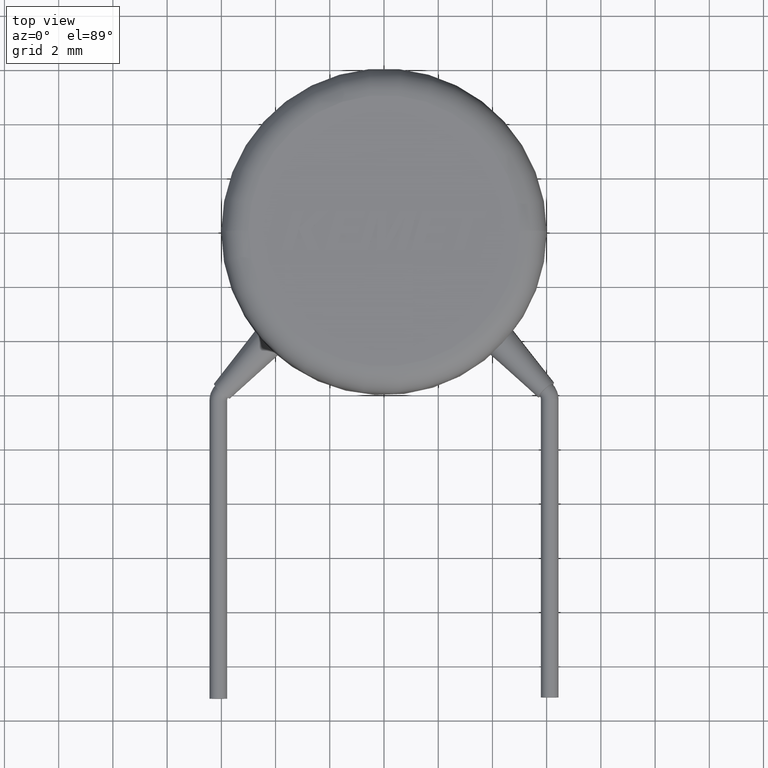
[diagram: clean part render]
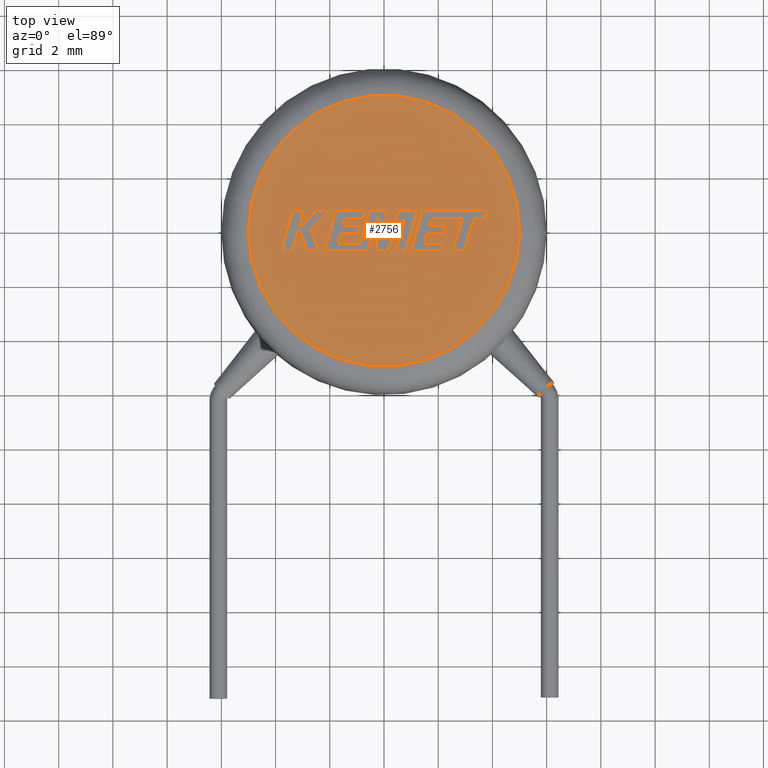
[diagram: same view with one face highlighted and labeled with its STEP entity id]
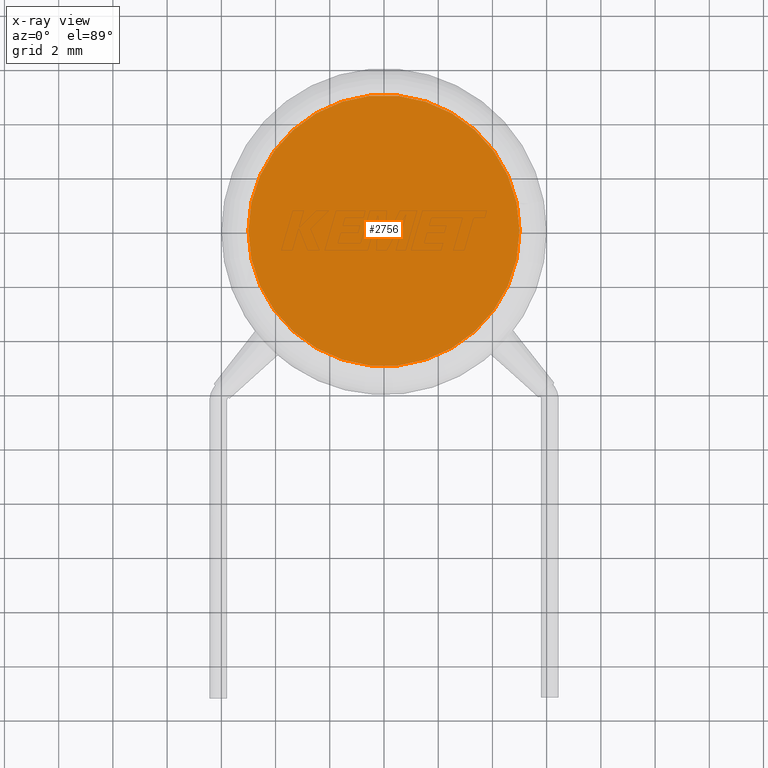
[diagram: x-ray of the same camera — body ghosted, the highlighted face saturated]
A machine part, top view. The second image highlights one B-rep face of the part: STEP entity #2756.
The next image is the same camera in x-ray: the body ghosted, the highlighted face saturated — about 0% of this face is hidden behind the body in this view.
In plain terms, the highlighted planar face has unit normal (0, 0, 1).
Its self-contained STEP definition (entity closure, byte-faithful):
#253 = DIRECTION ( 'NONE',  ( 1.000000000000000000, 0.0000000000000000000, 0.0000000000000000000 ) ) ;
#437 = CIRCLE ( 'NONE', #2848, 5.000000000000000900 ) ;
#708 = DIRECTION ( 'NONE',  ( 1.000000000000000000, 0.0000000000000000000, 0.0000000000000000000 ) ) ;
#725 = EDGE_CURVE ( 'NONE', #2071, #3127, #437, .T. ) ;
#1116 = EDGE_CURVE ( 'NONE', #3127, #2071, #1942, .T. ) ;
#1165 = DIRECTION ( 'NONE',  ( 0.0000000000000000000, 0.0000000000000000000, 1.000000000000000000 ) ) ;
#1717 = DIRECTION ( 'NONE',  ( 0.0000000000000000000, 0.0000000000000000000, 1.000000000000000000 ) ) ;
#1825 = CARTESIAN_POINT ( 'NONE',  ( 0.0000000000000000000, 0.0000000000000000000, 5.000000000000000000 ) ) ;
#1894 = AXIS2_PLACEMENT_3D ( 'NONE', #2917, #1165, #253 ) ;
#1942 = CIRCLE ( 'NONE', #1894, 5.000000000000000900 ) ;
#2071 = VERTEX_POINT ( 'NONE', #2396 ) ;
#2379 = AXIS2_PLACEMENT_3D ( 'NONE', #2607, #1717, #3742 ) ;
#2396 = CARTESIAN_POINT ( 'NONE',  ( -5.000000000000000900, 6.735557395310443000E-016, 5.000000000000000000 ) ) ;
#2445 = FACE_OUTER_BOUND ( 'NONE', #3066, .T. ) ;
#2561 = ORIENTED_EDGE ( 'NONE', *, *, #725, .T. ) ;
#2607 = CARTESIAN_POINT ( 'NONE',  ( 0.0000000000000000000, 0.0000000000000000000, 5.000000000000000000 ) ) ;
#2756 = ADVANCED_FACE ( 'NONE', ( #2445 ), #3186, .T. ) ;
#2763 = ORIENTED_EDGE ( 'NONE', *, *, #1116, .T. ) ;
#2772 = DIRECTION ( 'NONE',  ( 0.0000000000000000000, 0.0000000000000000000, 1.000000000000000000 ) ) ;
#2848 = AXIS2_PLACEMENT_3D ( 'NONE', #1825, #2772, #708 ) ;
#2917 = CARTESIAN_POINT ( 'NONE',  ( 0.0000000000000000000, 0.0000000000000000000, 5.000000000000000000 ) ) ;
#3066 = EDGE_LOOP ( 'NONE', ( #2763, #2561 ) ) ;
#3127 = VERTEX_POINT ( 'NONE', #3618 ) ;
#3186 = PLANE ( 'NONE',  #2379 ) ;
#3618 = CARTESIAN_POINT ( 'NONE',  ( 5.000000000000000900, 0.0000000000000000000, 5.000000000000000000 ) ) ;
#3742 = DIRECTION ( 'NONE',  ( 1.000000000000000000, 0.0000000000000000000, -0.0000000000000000000 ) ) ;